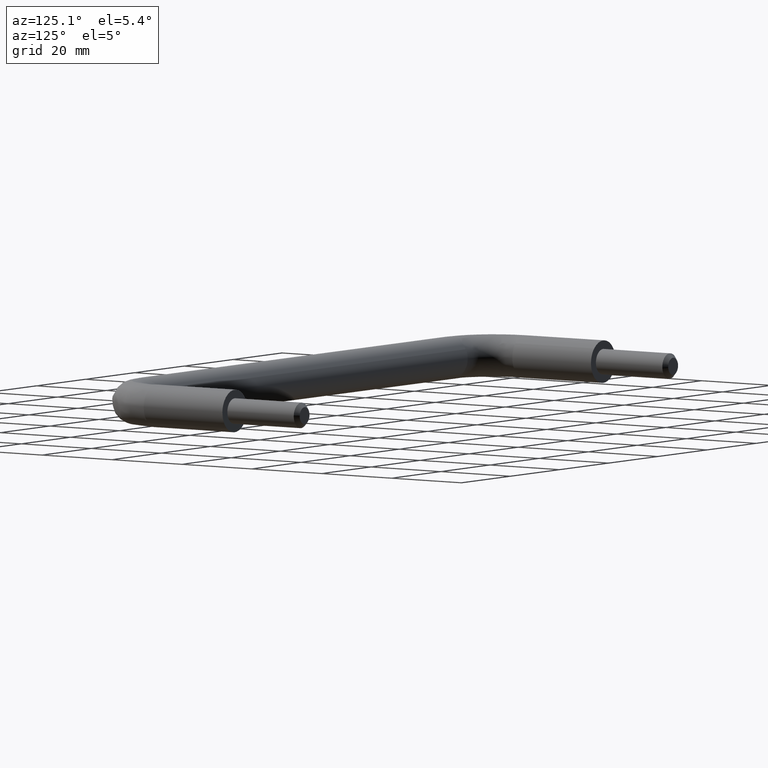
[diagram: clean part render]
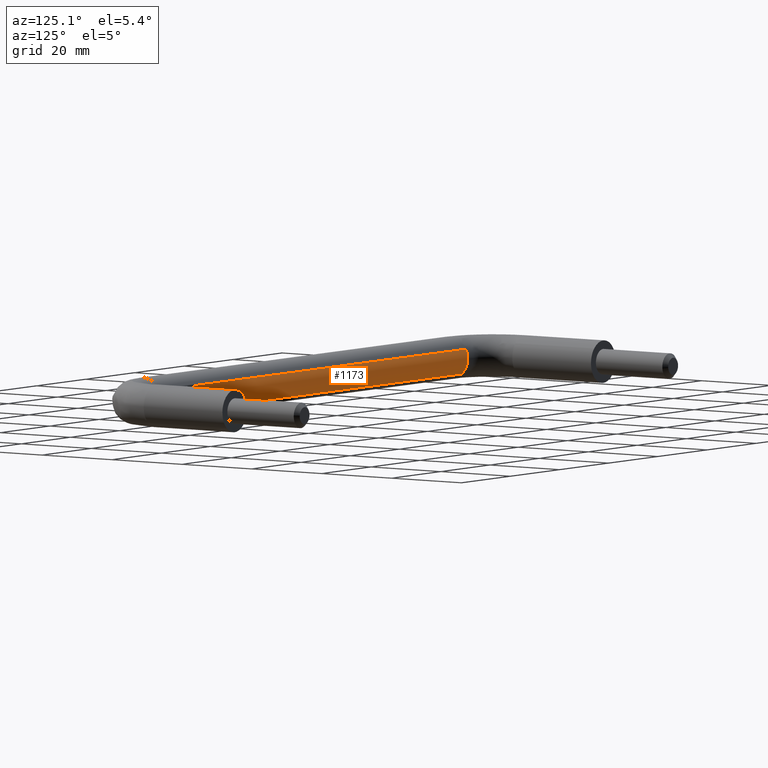
[diagram: same view with one face highlighted and labeled with its STEP entity id]
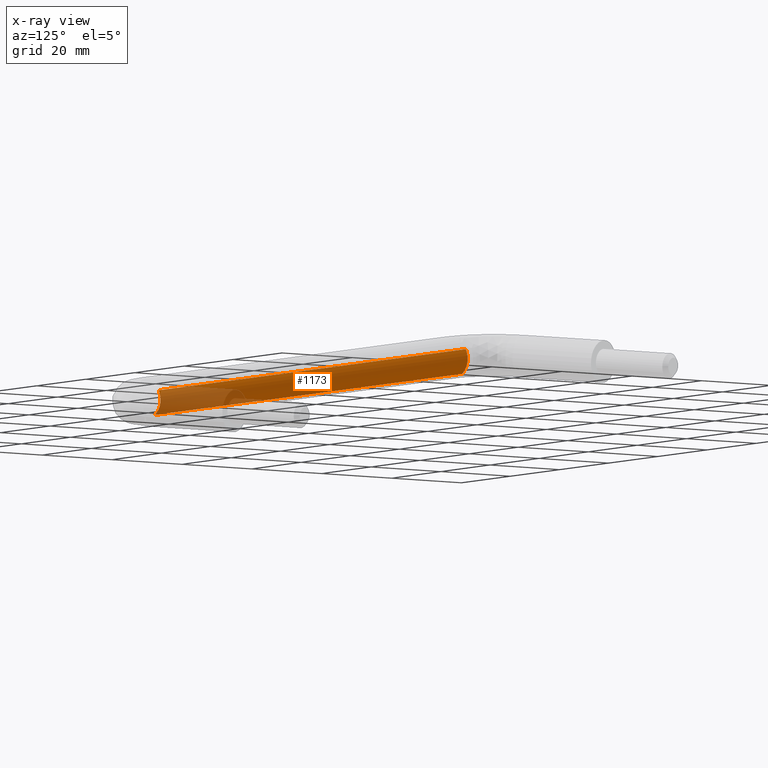
[diagram: x-ray of the same camera — body ghosted, the highlighted face saturated]
A machine part, auxiliary view. The second image highlights one B-rep face of the part: STEP entity #1173.
The next image is the same camera in x-ray: the body ghosted, the highlighted face saturated — about 24% of this face is hidden behind the body in this view.
In plain terms, the highlighted face is a freeform B-spline surface patch.
Its self-contained STEP definition (entity closure, byte-faithful):
#954=CARTESIAN_POINT('',(137.500000000000000,-30.521972536833768,2.224245948434888));
#955=VERTEX_POINT('',#954);
#973=CARTESIAN_POINT('',(12.499999999896010,-30.521972536891429,2.224245948405257));
#974=VERTEX_POINT('',#973);
#975=CARTESIAN_POINT('',(12.499999999896010,-30.521972536891429,2.224245948405257));
#976=CARTESIAN_POINT('',(137.500000000000000,-30.521972536833768,2.224245948434888));
#977=QUASI_UNIFORM_CURVE('',1,(#975,#976),.UNSPECIFIED.,.F.,.U.);
#978=EDGE_CURVE('',#974,#955,#977,.T.);
#1027=CARTESIAN_POINT('',(12.500000000000000,-31.558227545752050,-3.626872257631862));
#1028=VERTEX_POINT('',#1027);
#1044=CARTESIAN_POINT('',(137.500000000350610,-31.558228746679660,-3.626873397050097));
#1045=VERTEX_POINT('',#1044);
#1046=CARTESIAN_POINT('',(12.500000000000000,-31.558227545752050,-3.626872257631862));
#1047=CARTESIAN_POINT('',(137.500000000350610,-31.558228746679660,-3.626873397050097));
#1048=QUASI_UNIFORM_CURVE('',1,(#1046,#1047),.UNSPECIFIED.,.F.,.U.);
#1049=EDGE_CURVE('',#1028,#1045,#1048,.T.);
#1099=CARTESIAN_POINT('',(9.374999998963988,-31.558227121531232,-3.626871855061437));
#1100=CARTESIAN_POINT('',(9.374999998963988,-28.878708249008774,-1.084103389193821));
#1101=CARTESIAN_POINT('',(9.374999998963990,-30.521972536820851,2.224245948408881));
#1102=CARTESIAN_POINT('',(140.703125001164490,-31.558227121531232,-3.626871855061437));
#1103=CARTESIAN_POINT('',(140.703125001164490,-28.878708249008760,-1.084103389193821));
#1104=CARTESIAN_POINT('',(140.703125001164550,-30.521972536820840,2.224245948408881));
#1112=(BOUNDED_SURFACE()B_SPLINE_SURFACE(2,1,((#1099,#1102),(#1100,#1103),(#1101,#1104)),.UNSPECIFIED.,.F.,.F.,.U.)B_SPLINE_SURFACE_WITH_KNOTS((3,3),(2,2),(0.0,6.582243619433232),(0.0,131.328125002200610),.UNSPECIFIED.)GEOMETRIC_REPRESENTATION_ITEM()RATIONAL_B_SPLINE_SURFACE(((1.0,1.0),(0.765685424949238,0.765685424949238),(0.906274169979695,0.906274169979695)))REPRESENTATION_ITEM('')SURFACE());
#1113=CARTESIAN_POINT('',(137.500000000000000,-30.0,0.0));
#1114=VERTEX_POINT('',#1113);
#1115=CARTESIAN_POINT('',(137.500000000000000,-30.0,0.0));
#1116=CARTESIAN_POINT('',(137.500000000000000,-30.000000000000007,1.173369647380681));
#1117=CARTESIAN_POINT('',(137.499999999999940,-30.521972536833765,2.224245948434888));
#1125=(BOUNDED_CURVE()B_SPLINE_CURVE(2,(#1115,#1116,#1117),.UNSPECIFIED.,.F.,.U.)B_SPLINE_CURVE_WITH_KNOTS((3,3),(0.500000000000000,0.575619190624199),.UNSPECIFIED.)CURVE()GEOMETRIC_REPRESENTATION_ITEM()RATIONAL_B_SPLINE_CURVE((1.0,0.911406607416042,0.876408099966890))REPRESENTATION_ITEM(''));
#1126=EDGE_CURVE('',#1114,#955,#1125,.T.);
#1127=ORIENTED_EDGE('',*,*,#1126,.F.);
#1128=CARTESIAN_POINT('',(137.500000000350640,-31.558228746679656,-3.626873397050098));
#1129=CARTESIAN_POINT('',(137.499999999999970,-30.000000000000014,-2.148170856530644));
#1130=CARTESIAN_POINT('',(137.500000000000000,-30.0,0.0));
#1138=(BOUNDED_CURVE()B_SPLINE_CURVE(2,(#1128,#1129,#1130),.UNSPECIFIED.,.F.,.U.)B_SPLINE_CURVE_WITH_KNOTS((3,3),(0.371049459051508,0.500000000000000),.UNSPECIFIED.)CURVE()GEOMETRIC_REPRESENTATION_ITEM()RATIONAL_B_SPLINE_CURVE((0.853699666375974,0.848925043975442,1.0))REPRESENTATION_ITEM(''));
#1139=EDGE_CURVE('',#1045,#1114,#1138,.T.);
#1140=ORIENTED_EDGE('',*,*,#1139,.F.);
#1141=ORIENTED_EDGE('',*,*,#1049,.F.);
#1142=CARTESIAN_POINT('',(12.500000000000000,-30.0,0.0));
#1143=VERTEX_POINT('',#1142);
#1144=CARTESIAN_POINT('',(12.500000000000011,-31.558227545752043,-3.626872257631861));
#1145=CARTESIAN_POINT('',(12.500000000000002,-30.000000000000007,-2.148170222615347));
#1146=CARTESIAN_POINT('',(12.500000000000000,-30.0,0.0));
#1154=(BOUNDED_CURVE()B_SPLINE_CURVE(2,(#1144,#1145,#1146),.UNSPECIFIED.,.F.,.U.)B_SPLINE_CURVE_WITH_KNOTS((3,3),(0.371049491355407,0.500000000000000),.UNSPECIFIED.)CURVE()GEOMETRIC_REPRESENTATION_ITEM()RATIONAL_B_SPLINE_CURVE((0.853699663983766,0.848925081821813,1.0))REPRESENTATION_ITEM(''));
#1155=EDGE_CURVE('',#1028,#1143,#1154,.T.);
#1156=ORIENTED_EDGE('',*,*,#1155,.T.);
#1157=CARTESIAN_POINT('',(12.500000000000000,-30.0,0.0));
#1158=CARTESIAN_POINT('',(12.500000000000005,-30.000000000000007,1.173369647344691));
#1159=CARTESIAN_POINT('',(12.499999999896009,-30.521972536891433,2.224245948405257));
#1167=(BOUNDED_CURVE()B_SPLINE_CURVE(2,(#1157,#1158,#1159),.UNSPECIFIED.,.F.,.U.)B_SPLINE_CURVE_WITH_KNOTS((3,3),(0.500000000000000,0.575619190622085),.UNSPECIFIED.)CURVE()GEOMETRIC_REPRESENTATION_ITEM()RATIONAL_B_SPLINE_CURVE((1.0,0.911406607418518,0.876408099968846))REPRESENTATION_ITEM(''));
#1168=EDGE_CURVE('',#1143,#974,#1167,.T.);
#1169=ORIENTED_EDGE('',*,*,#1168,.T.);
#1170=ORIENTED_EDGE('',*,*,#978,.T.);
#1171=EDGE_LOOP('',(#1127,#1140,#1141,#1156,#1169,#1170));
#1172=FACE_OUTER_BOUND('',#1171,.T.);
#1173=ADVANCED_FACE('',(#1172),#1112,.T.);